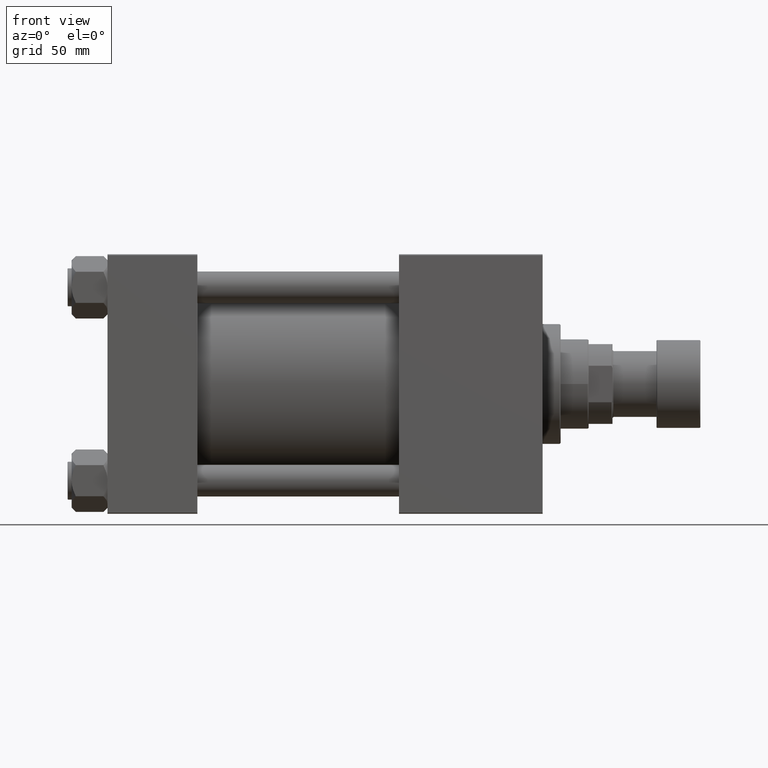
[diagram: clean part render]
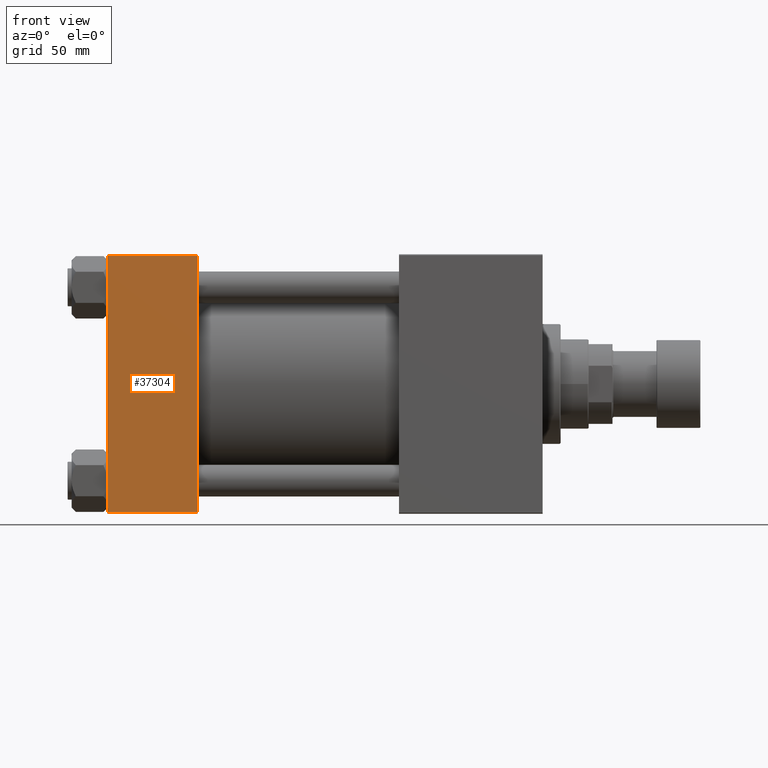
[diagram: same view with one face highlighted and labeled with its STEP entity id]
A machine part, front view. The second image highlights one B-rep face of the part: STEP entity #37304.
In plain terms, the highlighted planar face has unit normal (0, 1, 0).
Its self-contained STEP definition (entity closure, byte-faithful):
#1549 = LINE ( 'NONE', #5186, #41129 ) ;
#2060 = EDGE_CURVE ( 'NONE', #16954, #3540, #31234, .T. ) ;
#3540 = VERTEX_POINT ( 'NONE', #45884 ) ;
#5186 = CARTESIAN_POINT ( 'NONE',  ( 0.000000000000000000, -65.00000000000000000, 65.00000000000000000 ) ) ;
#9192 = DIRECTION ( 'NONE',  ( -1.000000000000000000, 0.000000000000000000, 0.000000000000000000 ) ) ;
#11507 = CARTESIAN_POINT ( 'NONE',  ( 0.000000000000000000, -65.00000000000000000, -64.49999999999991473 ) ) ;
#16191 = ORIENTED_EDGE ( 'NONE', *, *, #19420, .T. ) ;
#16954 = VERTEX_POINT ( 'NONE', #47539 ) ;
#16972 = LINE ( 'NONE', #44717, #25421 ) ;
#17303 = ORIENTED_EDGE ( 'NONE', *, *, #46027, .T. ) ;
#18072 = EDGE_LOOP ( 'NONE', ( #16191, #17303, #18602, #22775 ) ) ;
#18602 = ORIENTED_EDGE ( 'NONE', *, *, #2060, .F. ) ;
#19420 = EDGE_CURVE ( 'NONE', #21477, #39513, #1549, .T. ) ;
#20608 = DIRECTION ( 'NONE',  ( 0.000000000000000000, 0.000000000000000000, -1.000000000000000000 ) ) ;
#21477 = VERTEX_POINT ( 'NONE', #48120 ) ;
#21778 = VECTOR ( 'NONE', #20608, 1000.000000000000000 ) ;
#22775 = ORIENTED_EDGE ( 'NONE', *, *, #34018, .T. ) ;
#24195 = DIRECTION ( 'NONE',  ( 0.000000000000000000, -0.000000000000000000, 1.000000000000000000 ) ) ;
#24453 = DIRECTION ( 'NONE',  ( -0.000000000000000000, 1.000000000000000000, 0.000000000000000000 ) ) ;
#25421 = VECTOR ( 'NONE', #9192, 1000.000000000000000 ) ;
#25617 = CARTESIAN_POINT ( 'NONE',  ( 45.00000000000000000, -65.00000000000000000, -64.49999999999991473 ) ) ;
#31234 = LINE ( 'NONE', #36184, #21778 ) ;
#32236 = FACE_OUTER_BOUND ( 'NONE', #18072, .T. ) ;
#33415 = LINE ( 'NONE', #25617, #38984 ) ;
#34018 = EDGE_CURVE ( 'NONE', #16954, #21477, #16972, .T. ) ;
#36137 = CARTESIAN_POINT ( 'NONE',  ( 45.00000000000000000, -65.00000000000000000, 65.00000000000000000 ) ) ;
#36184 = CARTESIAN_POINT ( 'NONE',  ( 45.00000000000000000, -65.00000000000000000, 65.00000000000000000 ) ) ;
#37304 = ADVANCED_FACE ( 'NONE', ( #32236 ), #40275, .F. ) ;
#38984 = VECTOR ( 'NONE', #40693, 1000.000000000000000 ) ;
#39513 = VERTEX_POINT ( 'NONE', #11507 ) ;
#40275 = PLANE ( 'NONE',  #47063 ) ;
#40693 = DIRECTION ( 'NONE',  ( 1.000000000000000000, 0.000000000000000000, 0.000000000000000000 ) ) ;
#41129 = VECTOR ( 'NONE', #48971, 1000.000000000000000 ) ;
#44717 = CARTESIAN_POINT ( 'NONE',  ( 45.00000000000000000, -65.00000000000000000, 64.50000000000000000 ) ) ;
#45884 = CARTESIAN_POINT ( 'NONE',  ( 45.00000000000000000, -65.00000000000000000, -64.49999999999991473 ) ) ;
#46027 = EDGE_CURVE ( 'NONE', #39513, #3540, #33415, .T. ) ;
#47063 = AXIS2_PLACEMENT_3D ( 'NONE', #36137, #24453, #24195 ) ;
#47539 = CARTESIAN_POINT ( 'NONE',  ( 45.00000000000000000, -65.00000000000000000, 64.50000000000000000 ) ) ;
#48120 = CARTESIAN_POINT ( 'NONE',  ( 0.000000000000000000, -65.00000000000000000, 64.50000000000000000 ) ) ;
#48971 = DIRECTION ( 'NONE',  ( 0.000000000000000000, 0.000000000000000000, -1.000000000000000000 ) ) ;